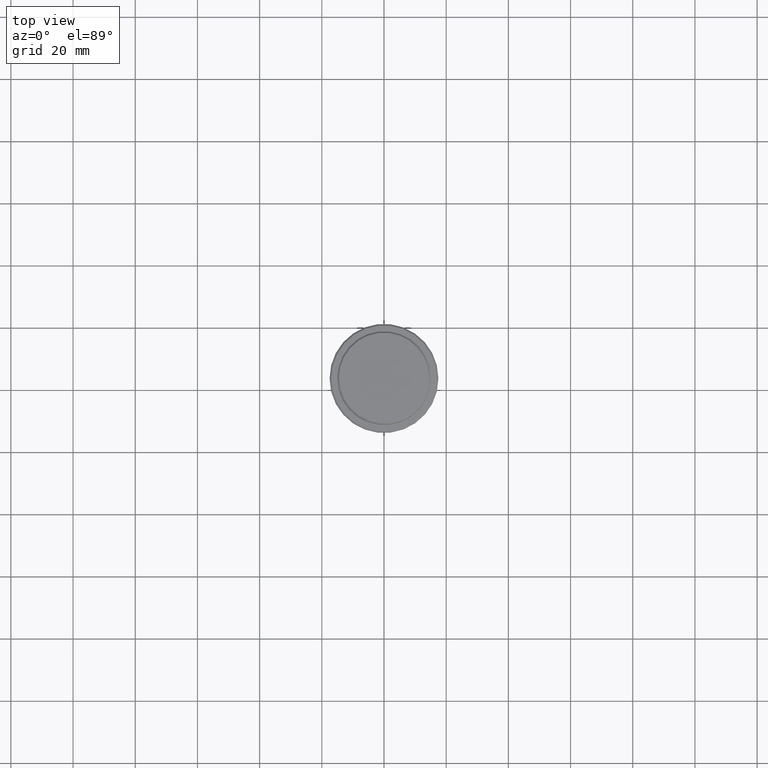
[diagram: clean part render]
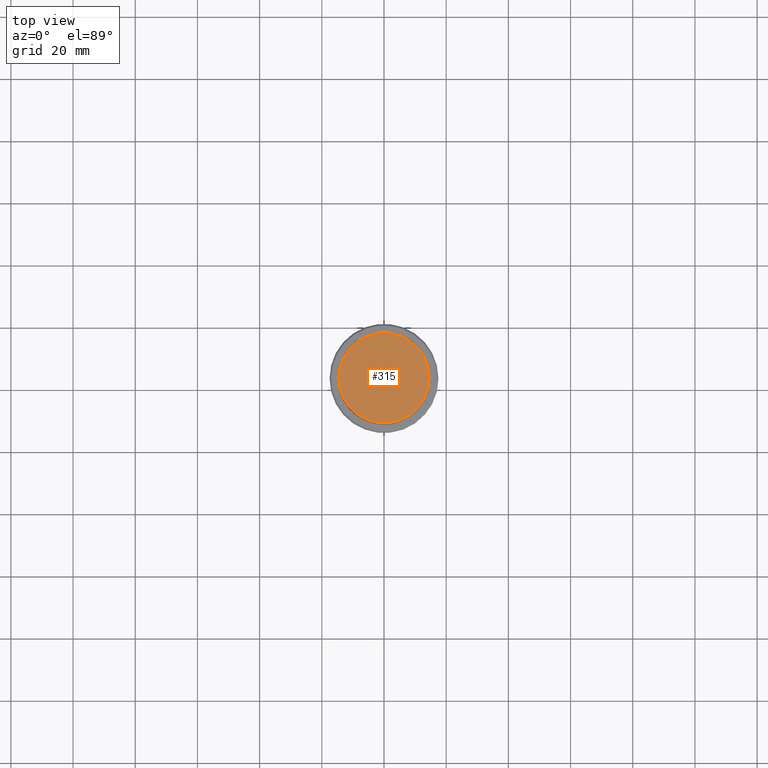
[diagram: same view with one face highlighted and labeled with its STEP entity id]
A machine part, top view. The second image highlights one B-rep face of the part: STEP entity #315.
In plain terms, the highlighted planar face has unit normal (0, -0, 1).
Its self-contained STEP definition (entity closure, byte-faithful):
#59 = DIRECTION ( 'NONE',  ( 0.000000000000000000, -0.000000000000000000, 1.000000000000000000 ) ) ;
#268 = CIRCLE ( 'NONE', #1319, 14.50000000000001066 ) ;
#291 = DIRECTION ( 'NONE',  ( 1.000000000000000000, 0.000000000000000000, 0.000000000000000000 ) ) ;
#315 = ADVANCED_FACE ( 'NONE', ( #1171 ), #1157, .T. ) ;
#510 = DIRECTION ( 'NONE',  ( 1.000000000000000000, 0.000000000000000000, 0.000000000000000000 ) ) ;
#517 = CARTESIAN_POINT ( 'NONE',  ( 0.000000000000000000, 0.000000000000000000, 0.000000000000000000 ) ) ;
#614 = DIRECTION ( 'NONE',  ( 1.000000000000000000, 0.000000000000000000, 0.000000000000000000 ) ) ;
#642 = VERTEX_POINT ( 'NONE', #1134 ) ;
#668 = EDGE_LOOP ( 'NONE', ( #1374, #899 ) ) ;
#792 = CIRCLE ( 'NONE', #1054, 14.50000000000001066 ) ;
#899 = ORIENTED_EDGE ( 'NONE', *, *, #1144, .T. ) ;
#950 = CARTESIAN_POINT ( 'NONE',  ( 0.000000000000000000, 0.000000000000000000, 0.000000000000000000 ) ) ;
#967 = CARTESIAN_POINT ( 'NONE',  ( 0.000000000000000000, 0.000000000000000000, 0.000000000000000000 ) ) ;
#972 = DIRECTION ( 'NONE',  ( -0.000000000000000000, -0.000000000000000000, 1.000000000000000000 ) ) ;
#1054 = AXIS2_PLACEMENT_3D ( 'NONE', #517, #972, #291 ) ;
#1117 = CARTESIAN_POINT ( 'NONE',  ( -14.50000000000001066, 0.000000000000000000, 0.000000000000000000 ) ) ;
#1134 = CARTESIAN_POINT ( 'NONE',  ( 14.50000000000001066, 1.806354028742346591E-15, 0.000000000000000000 ) ) ;
#1144 = EDGE_CURVE ( 'NONE', #642, #1337, #792, .T. ) ;
#1157 = PLANE ( 'NONE',  #1293 ) ;
#1171 = FACE_OUTER_BOUND ( 'NONE', #668, .T. ) ;
#1173 = DIRECTION ( 'NONE',  ( -0.000000000000000000, -0.000000000000000000, 1.000000000000000000 ) ) ;
#1256 = EDGE_CURVE ( 'NONE', #1337, #642, #268, .T. ) ;
#1293 = AXIS2_PLACEMENT_3D ( 'NONE', #950, #59, #614 ) ;
#1319 = AXIS2_PLACEMENT_3D ( 'NONE', #967, #1173, #510 ) ;
#1337 = VERTEX_POINT ( 'NONE', #1117 ) ;
#1374 = ORIENTED_EDGE ( 'NONE', *, *, #1256, .T. ) ;